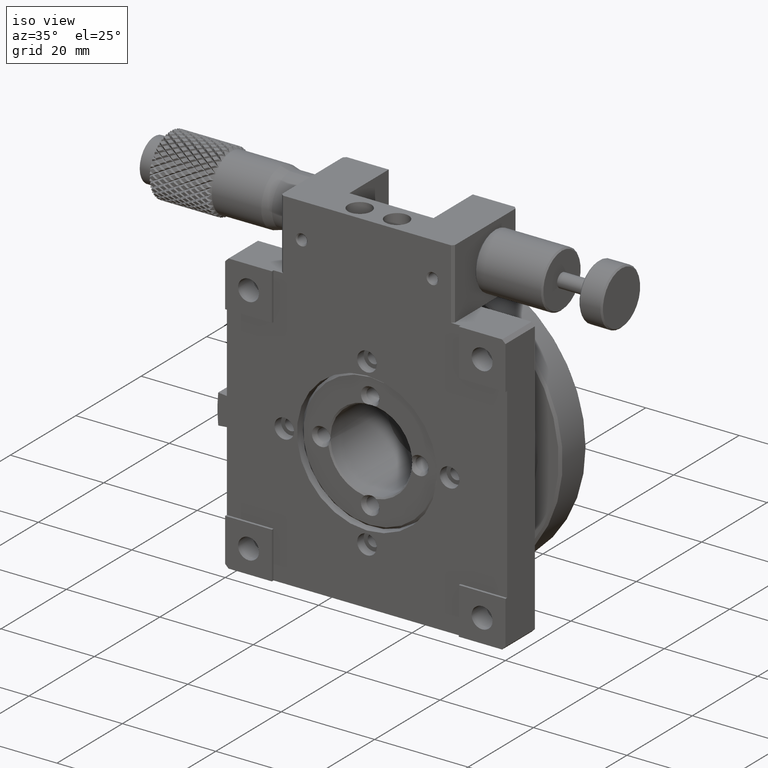
[diagram: clean part render]
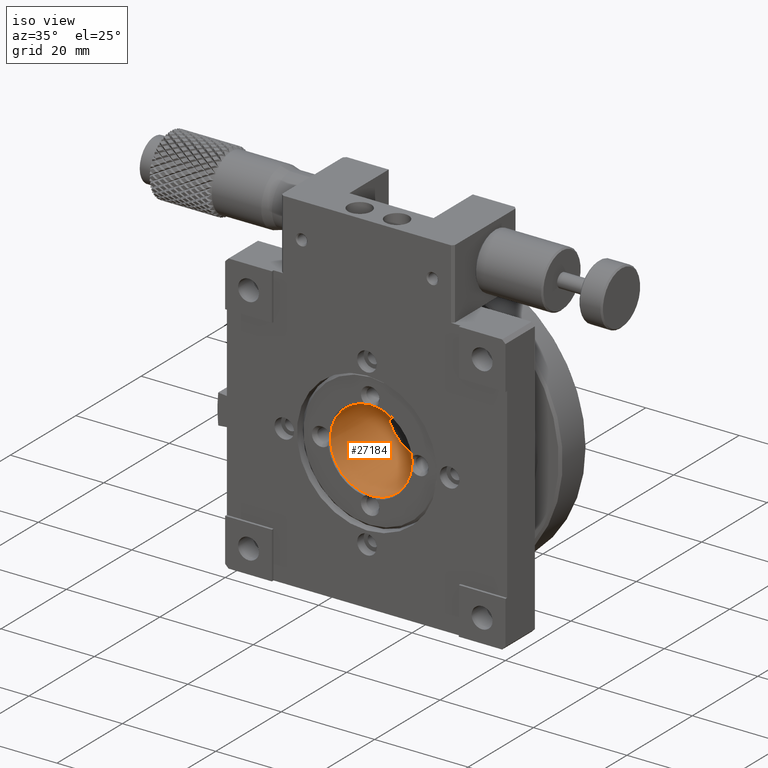
[diagram: same view with one face highlighted and labeled with its STEP entity id]
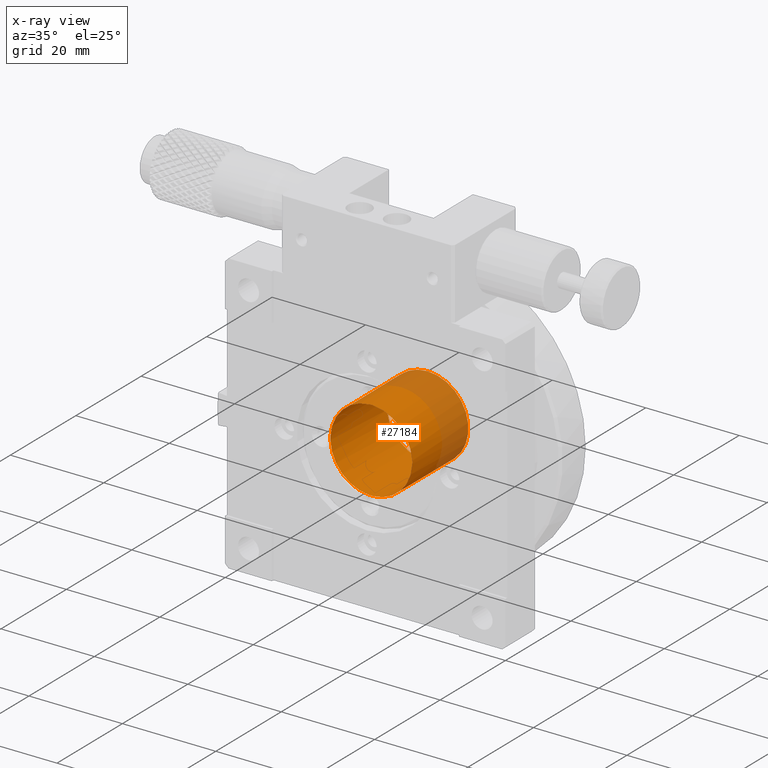
[diagram: x-ray of the same camera — body ghosted, the highlighted face saturated]
A machine part, iso view. The second image highlights one B-rep face of the part: STEP entity #27184.
The next image is the same camera in x-ray: the body ghosted, the highlighted face saturated — about 25% of this face is hidden behind the body in this view.
In plain terms, the highlighted cylindrical surface (bore or boss wall) has radius 8.75 mm, axis along (0, -1, 0).
Its self-contained STEP definition (entity closure, byte-faithful):
#325 = CARTESIAN_POINT ( 'NONE',  ( 30.00000000000000000, 1.799999809157594166, -30.00000000000000000 ) ) ;
#4214 = ORIENTED_EDGE ( 'NONE', *, *, #57420, .T. ) ;
#4484 = CIRCLE ( 'NONE', #23649, 8.750000000000000000 ) ;
#5311 = CIRCLE ( 'NONE', #50476, 8.750000000000000000 ) ;
#5358 = ORIENTED_EDGE ( 'NONE', *, *, #41277, .T. ) ;
#6230 = CARTESIAN_POINT ( 'NONE',  ( 38.74355778922182481, 1.799999620037335379, -30.33570401626743518 ) ) ;
#8045 = B_SPLINE_CURVE_WITH_KNOTS ( 'NONE', 3,
 ( #44114, #11945, #70237, #63810, #23099, #76255 ),
 .UNSPECIFIED., .F., .F.,
 ( 4, 2, 4 ),
 ( 0.000000000000000000, 0.0003394662783058000283, 0.0006789325566116000566 ),
 .UNSPECIFIED. ) ;
#8665 = CIRCLE ( 'NONE', #71462, 8.750000000000000000 ) ;
#8927 = CARTESIAN_POINT ( 'NONE',  ( 21.25644216510594475, 1.800000000003824541, -30.33570282659098538 ) ) ;
#10251 = FACE_OUTER_BOUND ( 'NONE', #55375, .T. ) ;
#10479 = EDGE_CURVE ( 'NONE', #26308, #54237, #8665, .T. ) ;
#10570 = CIRCLE ( 'NONE', #18762, 8.750000000000000000 ) ;
#11945 = CARTESIAN_POINT ( 'NONE',  ( 29.77343383354032724, 1.834855435677497093, -38.74774806850339814 ) ) ;
#12048 = EDGE_CURVE ( 'NONE', #23969, #50779, #79736, .T. ) ;
#12803 = EDGE_CURVE ( 'NONE', #18220, #22266, #44045, .T. ) ;
#14702 = CARTESIAN_POINT ( 'NONE',  ( 38.74774803641893328, 1.834855163502557396, -30.22656739024168004 ) ) ;
#14872 = AXIS2_PLACEMENT_3D ( 'NONE', #325, #26494, #40650 ) ;
#15374 = CARTESIAN_POINT ( 'NONE',  ( 21.24999183256378998, 1.854236089888687156, -30.11380121981651925 ) ) ;
#16687 = DIRECTION ( 'NONE',  ( 0.000000000000000000, -1.000000000000000000, 0.000000000000000000 ) ) ;
#17918 = ORIENTED_EDGE ( 'NONE', *, *, #12048, .T. ) ;
#18220 = VERTEX_POINT ( 'NONE', #6230 ) ;
#18762 = AXIS2_PLACEMENT_3D ( 'NONE', #52281, #58701, #84447 ) ;
#18935 = CIRCLE ( 'NONE', #14872, 8.750000000000000000 ) ;
#22266 = VERTEX_POINT ( 'NONE', #63694 ) ;
#22699 = CARTESIAN_POINT ( 'NONE',  ( 30.00000000000000000, 1.500000000000000000, -30.00000000000000000 ) ) ;
#23099 = CARTESIAN_POINT ( 'NONE',  ( 30.22650960478277682, 1.834873499387864371, -38.74775024007429636 ) ) ;
#23649 = AXIS2_PLACEMENT_3D ( 'NONE', #74896, #56409, #67611 ) ;
#23937 = VERTEX_POINT ( 'NONE', #83575 ) ;
#23969 = VERTEX_POINT ( 'NONE', #50978 ) ;
#26308 = VERTEX_POINT ( 'NONE', #69225 ) ;
#26313 = EDGE_LOOP ( 'NONE', ( #31544, #4214, #79685, #5358, #70763, #65858, #72931, #17918 ) ) ;
#26494 = DIRECTION ( 'NONE',  ( -0.000000000000000000, 1.000000000000000000, -0.000000000000000000 ) ) ;
#27184 = ADVANCED_FACE ( 'NONE', ( #75441, #10251 ), #82292, .F. ) ;
#31544 = ORIENTED_EDGE ( 'NONE', *, *, #68748, .F. ) ;
#34698 = ORIENTED_EDGE ( 'NONE', *, *, #57122, .F. ) ;
#34940 = CARTESIAN_POINT ( 'NONE',  ( 29.77349100099814194, 1.834873634623197747, -21.25224974397695732 ) ) ;
#40650 = DIRECTION ( 'NONE',  ( 0.000000000000000000, 0.000000000000000000, -1.000000000000000000 ) ) ;
#40972 = CARTESIAN_POINT ( 'NONE',  ( 30.22656738995873127, 1.834855163613341666, -21.25225196357387958 ) ) ;
#41277 = EDGE_CURVE ( 'NONE', #26308, #23937, #8045, .T. ) ;
#44045 = B_SPLINE_CURVE_WITH_KNOTS ( 'NONE', 3,
 ( #67000, #14702, #66577, #67421, #73029, #67839 ),
 .UNSPECIFIED., .F., .F.,
 ( 4, 2, 4 ),
 ( 6.150879170183870862E-10, 0.0003394669101427549634, 0.0006789332051975929122 ),
 .UNSPECIFIED. ) ;
#44114 = CARTESIAN_POINT ( 'NONE',  ( 29.66429657985203505, 1.799999810449607107, -38.74355781210949345 ) ) ;
#44976 = CARTESIAN_POINT ( 'NONE',  ( 29.66429717340762906, 1.800000000006650724, -21.25644216510613660 ) ) ;
#46032 = CARTESIAN_POINT ( 'NONE',  ( 30.00000000000000000, 1.799999809562513597, -30.00000000000000000 ) ) ;
#47820 = CARTESIAN_POINT ( 'NONE',  ( 30.33570401613738099, 1.799999620105626974, -21.25644221077318363 ) ) ;
#48461 = DIRECTION ( 'NONE',  ( 0.000000000000000000, 0.000000000000000000, -1.000000000000000000 ) ) ;
#50110 = EDGE_CURVE ( 'NONE', #23969, #22266, #4484, .T. ) ;
#50225 = CARTESIAN_POINT ( 'NONE',  ( 21.25644221080204588, 1.799999619858371647, -29.66429598311087545 ) ) ;
#50476 = AXIS2_PLACEMENT_3D ( 'NONE', #53680, #54092, #79002 ) ;
#50779 = VERTEX_POINT ( 'NONE', #44976 ) ;
#50978 = CARTESIAN_POINT ( 'NONE',  ( 30.33570401613738099, 1.799999620105626974, -21.25644221077318363 ) ) ;
#52281 = CARTESIAN_POINT ( 'NONE',  ( 30.00000000000000000, 19.00000000000000355, -30.00000000000000000 ) ) ;
#53389 = CARTESIAN_POINT ( 'NONE',  ( 30.11505373604025948, 1.854096862538088919, -21.25000821225386005 ) ) ;
#53680 = CARTESIAN_POINT ( 'NONE',  ( 30.00000000000000000, 1.799999809521159788, -30.00000000000000000 ) ) ;
#54092 = DIRECTION ( 'NONE',  ( -0.000000000000000000, 1.000000000000000000, -0.000000000000000000 ) ) ;
#54237 = VERTEX_POINT ( 'NONE', #83443 ) ;
#55085 = CARTESIAN_POINT ( 'NONE',  ( 30.00000000000000000, 19.00000000000000355, -38.75000000000000000 ) ) ;
#55375 = EDGE_LOOP ( 'NONE', ( #34698 ) ) ;
#56409 = DIRECTION ( 'NONE',  ( -0.000000000000000000, 1.000000000000000000, -0.000000000000000000 ) ) ;
#56464 = CARTESIAN_POINT ( 'NONE',  ( 21.25225196358070789, 1.834855163551385004, -29.77343260972248729 ) ) ;
#57122 = EDGE_CURVE ( 'NONE', #79995, #79995, #10570, .T. ) ;
#57420 = EDGE_CURVE ( 'NONE', #79047, #54237, #80863, .T. ) ;
#58701 = DIRECTION ( 'NONE',  ( 0.000000000000000000, -1.000000000000000000, 0.000000000000000000 ) ) ;
#58873 = DIRECTION ( 'NONE',  ( 0.000000000000000000, 0.000000000000000000, -1.000000000000000000 ) ) ;
#63694 = CARTESIAN_POINT ( 'NONE',  ( 38.74355783490429417, 1.799999999995751665, -29.66429717340977490 ) ) ;
#63810 = CARTESIAN_POINT ( 'NONE',  ( 30.11380182096397107, 1.854236021818687297, -38.75000815942746613 ) ) ;
#63986 = AXIS2_PLACEMENT_3D ( 'NONE', #22699, #16687, #48461 ) ;
#65858 = ORIENTED_EDGE ( 'NONE', *, *, #12803, .T. ) ;
#66577 = CARTESIAN_POINT ( 'NONE',  ( 38.74999178774525177, 1.854096862481477981, -30.11505373613416481 ) ) ;
#67000 = CARTESIAN_POINT ( 'NONE',  ( 38.74355778922182481, 1.799999620037335379, -30.33570401626743518 ) ) ;
#67421 = CARTESIAN_POINT ( 'NONE',  ( 38.75000816743200716, 1.854236089808213528, -29.88619877996729812 ) ) ;
#67611 = DIRECTION ( 'NONE',  ( 7.930164461608261426E-16, 0.000000000000000000, -1.000000000000000000 ) ) ;
#67664 = CARTESIAN_POINT ( 'NONE',  ( 21.25224974397200128, 1.834873634661152275, -30.22650899887187492 ) ) ;
#67839 = CARTESIAN_POINT ( 'NONE',  ( 38.74355783490429417, 1.799999999995751665, -29.66429717340977490 ) ) ;
#68748 = EDGE_CURVE ( 'NONE', #79047, #50779, #18935, .T. ) ;
#69225 = CARTESIAN_POINT ( 'NONE',  ( 29.66429657985203505, 1.799999810449607107, -38.74355781210949345 ) ) ;
#69335 = CARTESIAN_POINT ( 'NONE',  ( 21.25644221080204588, 1.799999619858371647, -29.66429598311087545 ) ) ;
#70237 = CARTESIAN_POINT ( 'NONE',  ( 29.88494689368458168, 1.854096931317342545, -38.74999179583780773 ) ) ;
#70763 = ORIENTED_EDGE ( 'NONE', *, *, #70890, .F. ) ;
#70890 = EDGE_CURVE ( 'NONE', #18220, #23937, #5311, .T. ) ;
#71462 = AXIS2_PLACEMENT_3D ( 'NONE', #46032, #72165, #58873 ) ;
#72165 = DIRECTION ( 'NONE',  ( -0.000000000000000000, 1.000000000000000000, -0.000000000000000000 ) ) ;
#72931 = ORIENTED_EDGE ( 'NONE', *, *, #50110, .F. ) ;
#73029 = CARTESIAN_POINT ( 'NONE',  ( 38.74775025602423995, 1.834873634583493951, -29.77349100103447554 ) ) ;
#73113 = CARTESIAN_POINT ( 'NONE',  ( 29.66429717340762906, 1.800000000006650724, -21.25644216510613660 ) ) ;
#74390 = CARTESIAN_POINT ( 'NONE',  ( 29.88619877992501728, 1.854236089849648383, -21.24999183256888813 ) ) ;
#74896 = CARTESIAN_POINT ( 'NONE',  ( 30.00000000000000000, 1.799999809512626614, -30.00000000000000000 ) ) ;
#75441 = FACE_OUTER_BOUND ( 'NONE', #26313, .T. ) ;
#76255 = CARTESIAN_POINT ( 'NONE',  ( 30.33570344432241939, 1.799999917333775734, -38.74355785239924899 ) ) ;
#79002 = DIRECTION ( 'NONE',  ( 7.930164461608261426E-16, 0.000000000000000000, -1.000000000000000000 ) ) ;
#79047 = VERTEX_POINT ( 'NONE', #50225 ) ;
#79685 = ORIENTED_EDGE ( 'NONE', *, *, #10479, .F. ) ;
#79736 = B_SPLINE_CURVE_WITH_KNOTS ( 'NONE', 3,
 ( #47820, #40972, #53389, #74390, #34940, #73113 ),
 .UNSPECIFIED., .F., .F.,
 ( 4, 2, 4 ),
 ( 6.149139168644325990E-10, 0.0003394669099034234596, 0.0006789332048929300418 ),
 .UNSPECIFIED. ) ;
#79995 = VERTEX_POINT ( 'NONE', #55085 ) ;
#80863 = B_SPLINE_CURVE_WITH_KNOTS ( 'NONE', 3,
 ( #69335, #56464, #82634, #15374, #67664, #8927 ),
 .UNSPECIFIED., .F., .F.,
 ( 4, 2, 4 ),
 ( 6.145822325732221620E-10, 0.0003394669099660290335, 0.0006789332053498254140 ),
 .UNSPECIFIED. ) ;
#82292 = CYLINDRICAL_SURFACE ( 'NONE', #63986, 8.750000000000000000 ) ;
#82634 = CARTESIAN_POINT ( 'NONE',  ( 21.25000821225901149, 1.854096862489953201, -29.88494626343535998 ) ) ;
#83443 = CARTESIAN_POINT ( 'NONE',  ( 21.25644216510594475, 1.800000000003824541, -30.33570282659098538 ) ) ;
#83575 = CARTESIAN_POINT ( 'NONE',  ( 30.33570344432241939, 1.799999917333775734, -38.74355785239924899 ) ) ;
#84447 = DIRECTION ( 'NONE',  ( 0.000000000000000000, 0.000000000000000000, -1.000000000000000000 ) ) ;